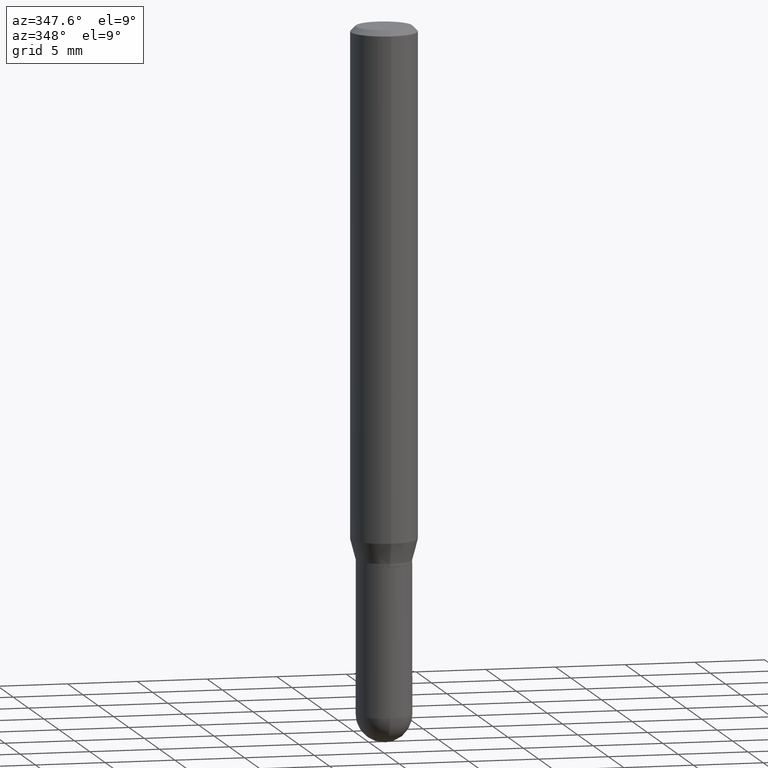
[diagram: clean part render]
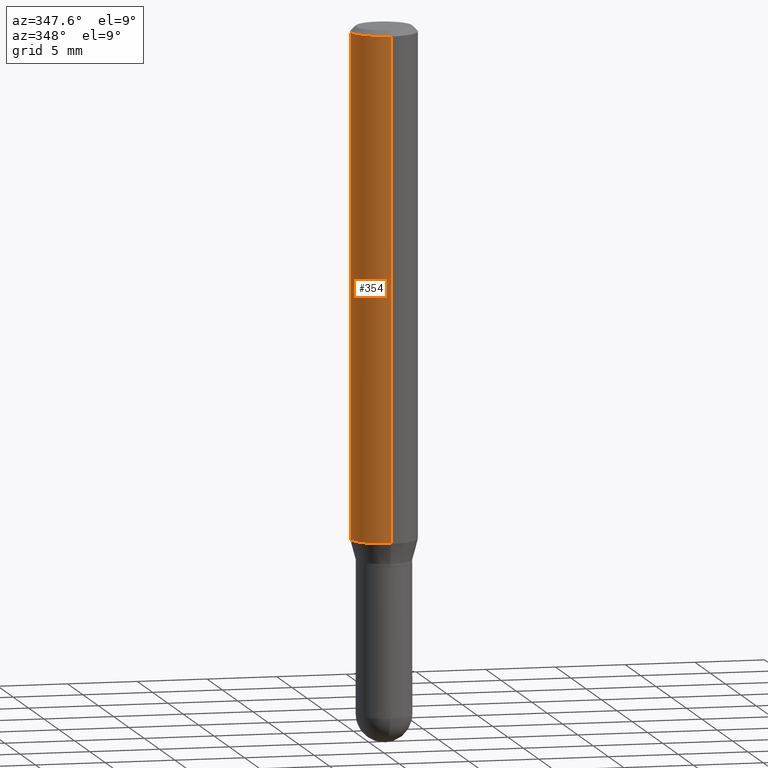
[diagram: same view with one face highlighted and labeled with its STEP entity id]
A machine part, auxiliary view. The second image highlights one B-rep face of the part: STEP entity #354.
In plain terms, the highlighted cylindrical surface (edge-blend (fillet) strip) has radius 2.3813 mm, axis along (-0, 0, 1).
Its self-contained STEP definition (entity closure, byte-faithful):
#1 = FACE_OUTER_BOUND ( 'NONE', #182, .T. ) ;
#68 = CIRCLE ( 'NONE', #364, 0.09375000000000001388 ) ;
#69 = EDGE_CURVE ( 'NONE', #70, #376, #510, .T. ) ;
#70 = VERTEX_POINT ( 'NONE', #473 ) ;
#72 = VECTOR ( 'NONE', #410, 39.37007874015748143 ) ;
#75 = DIRECTION ( 'NONE',  ( -2.445771070544258513E-29, 3.491048479077063976E-15, 1.000000000000000000 ) ) ;
#96 = CARTESIAN_POINT ( 'NONE',  ( 3.668656605816431051E-31, -5.236572718615656977E-17, -0.01500000000000017465 ) ) ;
#111 = AXIS2_PLACEMENT_3D ( 'NONE', #150, #75, #319 ) ;
#119 = LINE ( 'NONE', #157, #289 ) ;
#133 = VERTEX_POINT ( 'NONE', #341 ) ;
#136 = ORIENTED_EDGE ( 'NONE', *, *, #401, .F. ) ;
#138 = ORIENTED_EDGE ( 'NONE', *, *, #189, .T. ) ;
#150 = CARTESIAN_POINT ( 'NONE',  ( 3.501349734392323234E-29, -4.997761978698656219E-15, -1.431593404861545960 ) ) ;
#151 = DIRECTION ( 'NONE',  ( -2.445771070544258513E-29, 3.491048479077063976E-15, 1.000000000000000000 ) ) ;
#157 = CARTESIAN_POINT ( 'NONE',  ( 6.661338147750938256E-16, 0.09375000000000001388, -3.272857949134747847E-16 ) ) ;
#169 = CARTESIAN_POINT ( 'NONE',  ( -6.546527510330875041E-16, -0.09375000000000001388, 3.272857949134747847E-16 ) ) ;
#172 = AXIS2_PLACEMENT_3D ( 'NONE', #244, #151, #202 ) ;
#179 = VERTEX_POINT ( 'NONE', #345 ) ;
#182 = EDGE_LOOP ( 'NONE', ( #136, #427, #138, #305 ) ) ;
#189 = EDGE_CURVE ( 'NONE', #376, #133, #449, .T. ) ;
#202 = DIRECTION ( 'NONE',  ( -6.982962677686265922E-15, -1.000000000000000000, 3.491048479077063976E-15 ) ) ;
#244 = CARTESIAN_POINT ( 'NONE',  ( 0.000000000000000000, 0.000000000000000000, 0.000000000000000000 ) ) ;
#252 = DIRECTION ( 'NONE',  ( -2.445771070544258232E-29, 3.491048479077063581E-15, 1.000000000000000000 ) ) ;
#289 = VECTOR ( 'NONE', #252, 39.37007874015748143 ) ;
#305 = ORIENTED_EDGE ( 'NONE', *, *, #436, .F. ) ;
#319 = DIRECTION ( 'NONE',  ( -6.982962677686265922E-15, -1.000000000000000000, 2.913971193241880372E-15 ) ) ;
#321 = CYLINDRICAL_SURFACE ( 'NONE', #172, 0.09375000000000001388 ) ;
#341 = CARTESIAN_POINT ( 'NONE',  ( -6.546527510330871097E-16, -0.09375000000000005551, -0.01499999999999984852 ) ) ;
#345 = CARTESIAN_POINT ( 'NONE',  ( 6.661338147751291272E-16, 0.09374999999999995837, -0.01500000000000050078 ) ) ;
#354 = ADVANCED_FACE ( 'NONE', ( #1 ), #321, .T. ) ;
#364 = AXIS2_PLACEMENT_3D ( 'NONE', #96, #370, #378 ) ;
#370 = DIRECTION ( 'NONE',  ( -2.445771070544258513E-29, 3.491048479077063976E-15, 1.000000000000000000 ) ) ;
#376 = VERTEX_POINT ( 'NONE', #441 ) ;
#378 = DIRECTION ( 'NONE',  ( -6.982962677686265922E-15, -1.000000000000000000, 3.483106191921935160E-15 ) ) ;
#401 = EDGE_CURVE ( 'NONE', #70, #179, #119, .T. ) ;
#410 = DIRECTION ( 'NONE',  ( -2.445771070544258232E-29, 3.491048479077063581E-15, 1.000000000000000000 ) ) ;
#427 = ORIENTED_EDGE ( 'NONE', *, *, #69, .T. ) ;
#436 = EDGE_CURVE ( 'NONE', #179, #133, #68, .T. ) ;
#441 = CARTESIAN_POINT ( 'NONE',  ( -6.546527510330523012E-16, -0.09375000000000500988, -1.431593404861545737 ) ) ;
#449 = LINE ( 'NONE', #169, #72 ) ;
#473 = CARTESIAN_POINT ( 'NONE',  ( 6.661338147751288313E-16, 0.09374999999999500400, -1.431593404861546182 ) ) ;
#510 = CIRCLE ( 'NONE', #111, 0.09375000000000001388 ) ;